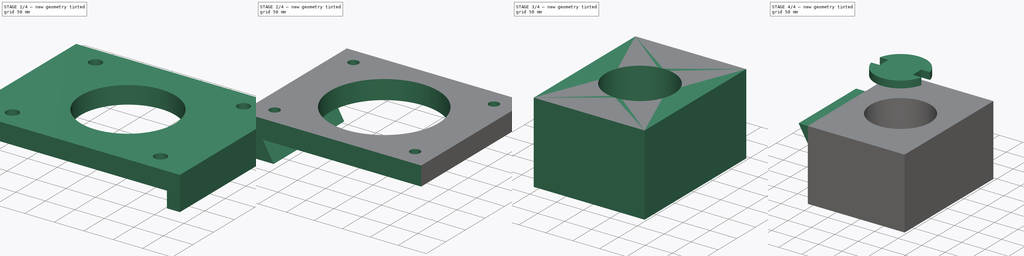
[diagram: build sequence overview — one tinted view per stage of 4, left to right]
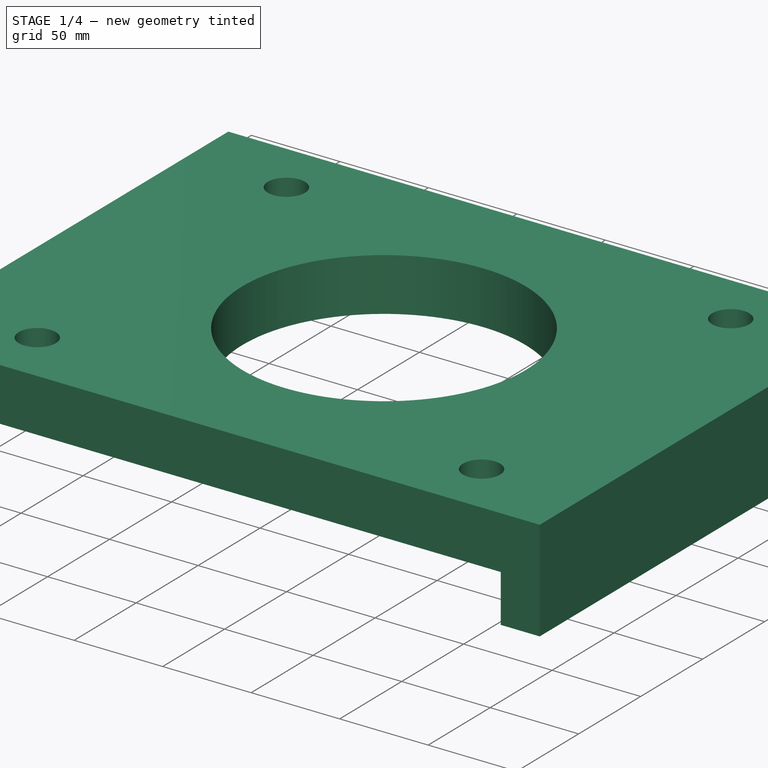
[diagram: stage 1 of 4 — iso view after this stage's code; geometry added in this stage tinted green]
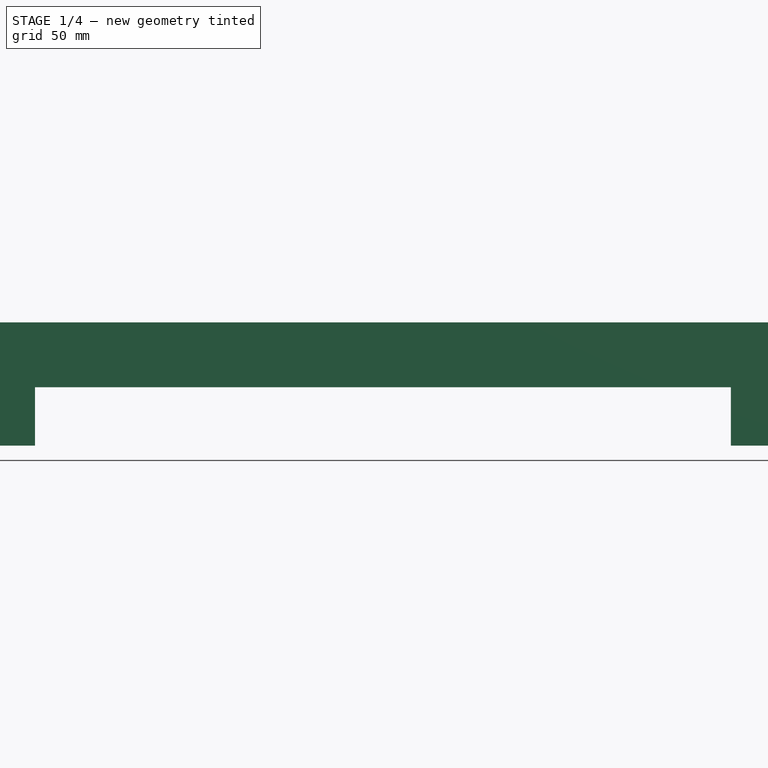
[diagram: stage 1 of 4 — front view after this stage's code; geometry added in this stage tinted green]
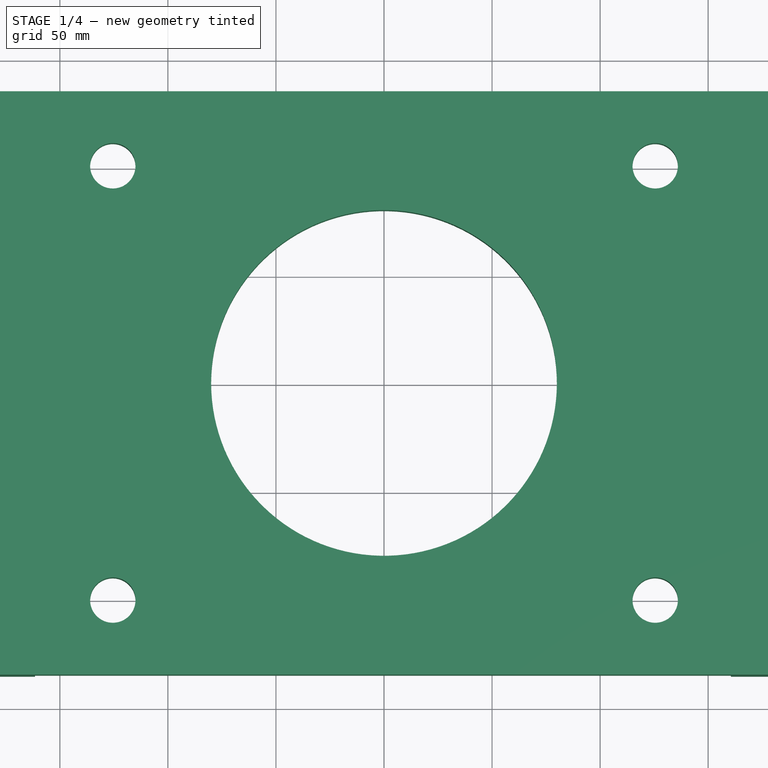
[diagram: stage 1 of 4 — top view after this stage's code; geometry added in this stage tinted green]
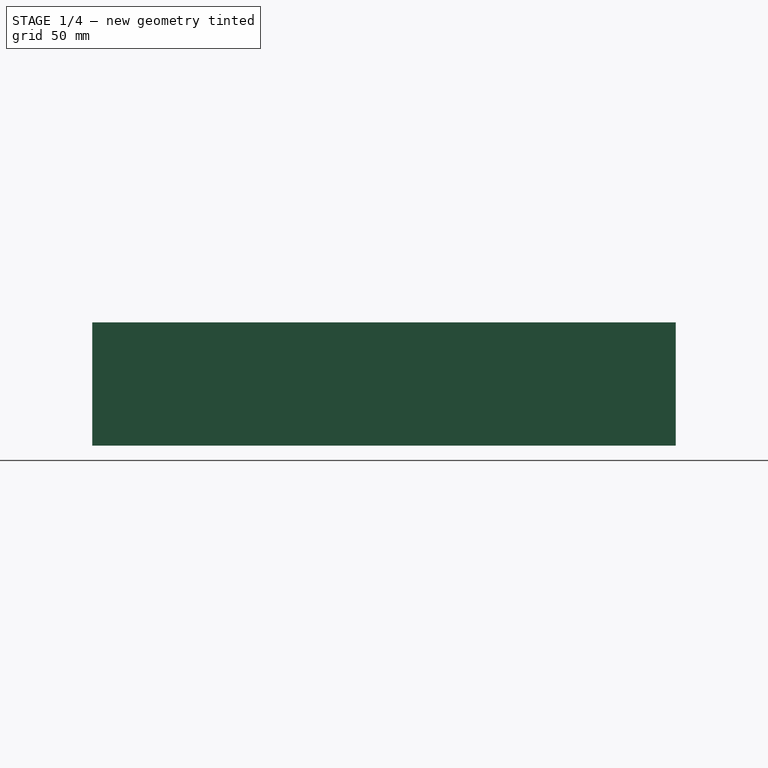
[diagram: stage 1 of 4 — right view after this stage's code; geometry added in this stage tinted green]
FCSTD DOCUMENT  (FreeCAD 0.21R33771 (Git))
Label: slotting_head_adaptation_assembly
License: All rights reserved
LicenseURL: https://en.wikipedia.org/wiki/All_rights_reserved
objects: Sketcher::SketchObject×8, PartDesign::Pad×7, PartDesign::Body×4, App::Part×4, PartDesign::ShapeBinder×3, PartDesign::Plane×2, PartDesign::Mirrored×1, PartDesign::Hole×1
note: 34 computed .brp shape members not serialized (recipe doc carries the construction recipe); baked Part::Feature solids carry a one-line shape summary decoded from their .brp

FEATURE [Sketcher::SketchObject] Sketch001
  FullyConstrained = true
  MapMode = 5
  Support = -> [XY_Plane002]
  sketch-geometry (13):
    g0: Circle CenterX=0 CenterY=0 CenterZ=0 NormalX=0 NormalY=0 NormalZ=1 AngleXU=0 Radius=80
    g1: LineSegment StartX=-182.5 StartY=135 StartZ=0 EndX=-182.5 EndY=-135 EndZ=0
    g2: LineSegment StartX=-182.5 StartY=-135 StartZ=0 EndX=182.5 EndY=-135 EndZ=0
    g3: LineSegment StartX=182.5 StartY=-135 StartZ=0 EndX=182.5 EndY=135 EndZ=0
    g4: LineSegment StartX=182.5 StartY=135 StartZ=0 EndX=-182.5 EndY=135 EndZ=0
    g5: Circle CenterX=-125.5 CenterY=-100.5 CenterZ=0 NormalX=0 NormalY=0 NormalZ=1 AngleXU=0 Radius=10.5
    g6: Circle CenterX=125.5 CenterY=100.5 CenterZ=0 NormalX=0 NormalY=0 NormalZ=1 AngleXU=0 Radius=10.5
    g7: Circle CenterX=125.5 CenterY=-100.5 CenterZ=0 NormalX=0 NormalY=0 NormalZ=1 AngleXU=0 Radius=10.5
    g8: Circle CenterX=-125.5 CenterY=100.5 CenterZ=0 NormalX=0 NormalY=0 NormalZ=1 AngleXU=0 Radius=10.5
    g9: LineSegment StartX=-136 StartY=111 StartZ=0 EndX=-136 EndY=-111 EndZ=0
    g10: LineSegment StartX=-136 StartY=-111 StartZ=0 EndX=136 EndY=-111 EndZ=0
    g11: LineSegment StartX=136 StartY=-111 StartZ=0 EndX=136 EndY=111 EndZ=0
    g12: LineSegment StartX=136 StartY=111 StartZ=0 EndX=-136 EndY=111 EndZ=0
  constraints (33):
    c: Diameter(g0) = 160
    c: Coincident(g1,g2)
    c: Coincident(g2,g3)
    c: Coincident(g3,g4)
    c: Coincident(g4,g1)
    c: Vertical(g1)
    c: Vertical(g3)
    c: Horizontal(g2)
    c: Horizontal(g4)
    c: Distance(g1,g3) = 365
    c: Distance(g2,g4) = 270
    c: Symmetric(g1,g2,g0)
    c: Coincident(g0,g-1)
    c: Radius(g5) = 10.5
    c: Coincident(g9,g10)
    c: Coincident(g10,g11)
    c: Coincident(g11,g12)
    c: Coincident(g12,g9)
    c: Vertical(g9)
    c: Vertical(g11)
    c: Horizontal(g10)
    c: Horizontal(g12)
    c: Distance(g9,g11) = 272
    c: Distance(g10,g12) = 222
    c: Symmetric(g9,g10,g0)
    c: Tangent(g8,g12)
    c: Tangent(g8,g9)
    c: Diameter(g8) = 21
    c: Equal(g8,g6)
    c: Equal(g6,g7)
    c: Symmetric(g7,g8,g0)
    c: Symmetric(g6,g5,g0)
    c: Symmetric(g6,g8,g-2)
FEATURE [PartDesign::Pad] Pad
  Direction = (0,0,1)
  Length = 30
  Length2 = 10
  Profile = -> Sketch001
  ReferenceAxis = -> Sketch001 [N_Axis]
  Refine = true
  Type = 0
FEATURE [Sketcher::SketchObject] Sketch
  ExternalGeometry = -> [Pad]
  FullyConstrained = true
  MapMode = 5
  Placement = pos=(0,0,0) rot=(1,0,0;3.14159rad)
  Support = -> [Pad]
  sketch-geometry (8):
    g0: LineSegment StartX=160.5 StartY=135 StartZ=0 EndX=160.5 EndY=-135 EndZ=0
    g1: LineSegment StartX=160.5 StartY=-135 StartZ=0 EndX=182.5 EndY=-135 EndZ=0
    g2: LineSegment StartX=182.5 StartY=-135 StartZ=0 EndX=182.5 EndY=135 EndZ=0
    g3: LineSegment StartX=182.5 StartY=135 StartZ=0 EndX=160.5 EndY=135 EndZ=0
    g4: LineSegment StartX=-182.5 StartY=135 StartZ=0 EndX=-182.5 EndY=-135 EndZ=0
    g5: LineSegment StartX=-182.5 StartY=-135 StartZ=0 EndX=-161.5 EndY=-135 EndZ=0
    g6: LineSegment StartX=-161.5 StartY=-135 StartZ=0 EndX=-161.5 EndY=135 EndZ=0
    g7: LineSegment StartX=-161.5 StartY=135 StartZ=0 EndX=-182.5 EndY=135 EndZ=0
  constraints (22):
    c: Coincident(g0,g1)
    c: Coincident(g1,g2)
    c: Coincident(g2,g3)
    c: Coincident(g3,g0)
    c: Vertical(g0)
    c: Vertical(g2)
    c: Horizontal(g1)
    c: Horizontal(g3)
    c: Distance(g0,g2) = 22
    c: PointOnObject(g0,g-4)
    c: Coincident(g1,g-6)
    c: Coincident(g4,g5)
    c: Coincident(g5,g6)
    c: Coincident(g6,g7)
    c: Coincident(g7,g4)
    c: Vertical(g4)
    c: Vertical(g6)
    c: Horizontal(g5)
    c: Horizontal(g7)
    c: Coincident(g4,g-5)
    c: PointOnObject(g5,g-6)
    c: Distance(g7,g7) = 21
FEATURE [PartDesign::Pad] Pad001
  BaseFeature = -> Pad
  Direction = (0,0,-1)
  Length = 27
  Length2 = 10
  Profile = -> Sketch
  ReferenceAxis = -> Sketch [N_Axis]
  Refine = true
  Type = 0
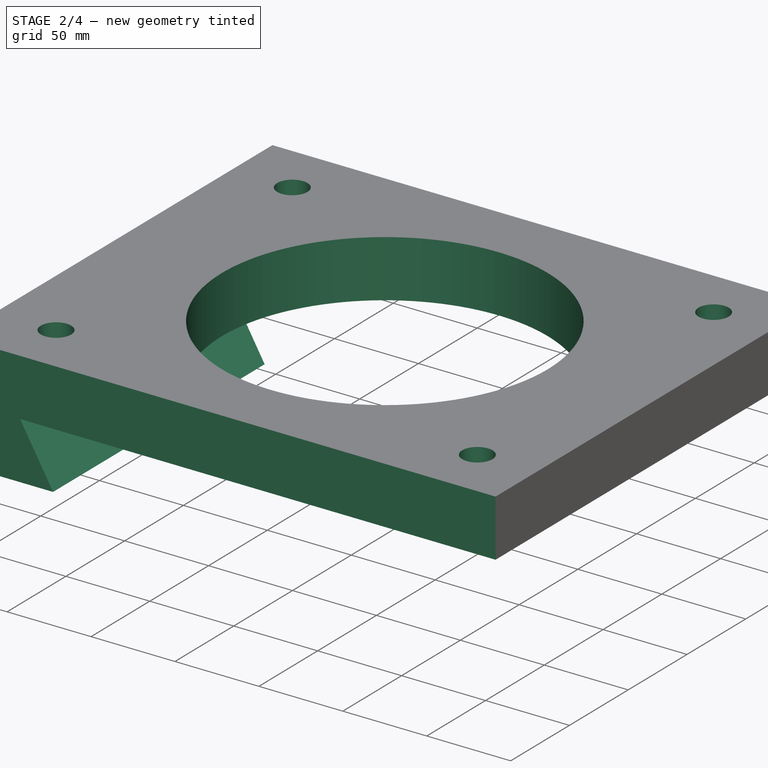
[diagram: stage 2 of 4 — iso view after this stage's code; geometry added in this stage tinted green]
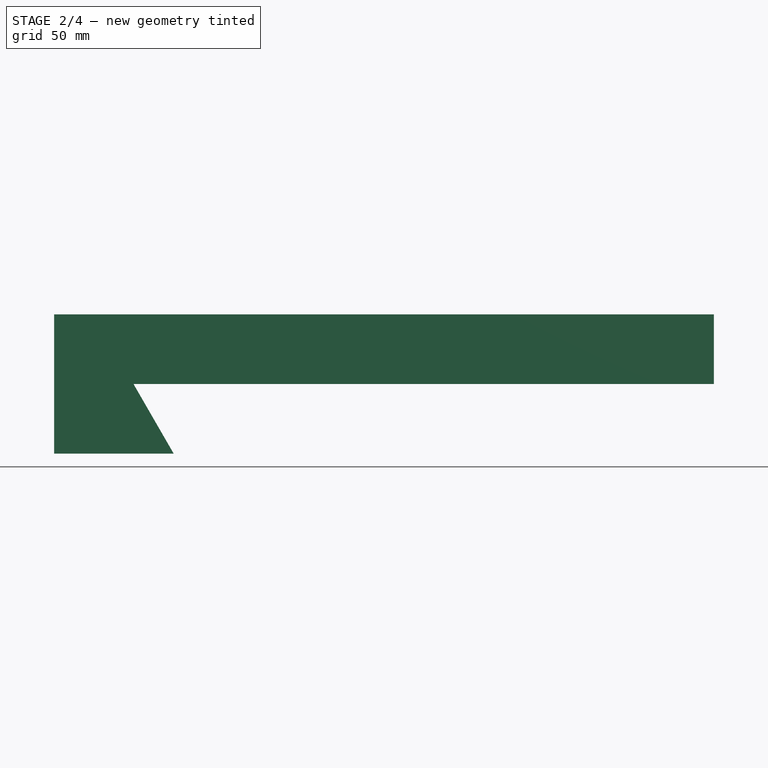
[diagram: stage 2 of 4 — front view after this stage's code; geometry added in this stage tinted green]
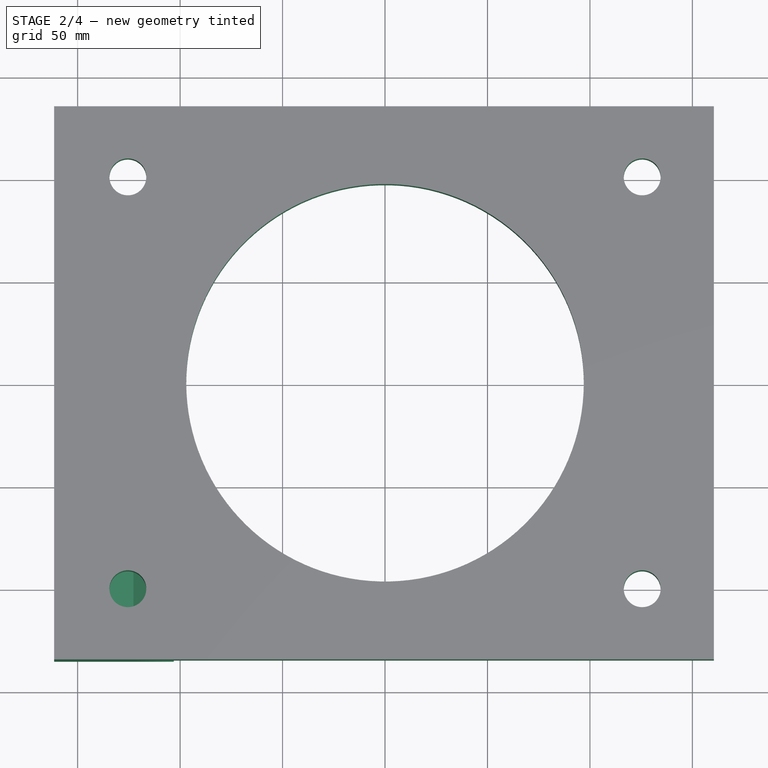
[diagram: stage 2 of 4 — top view after this stage's code; geometry added in this stage tinted green]
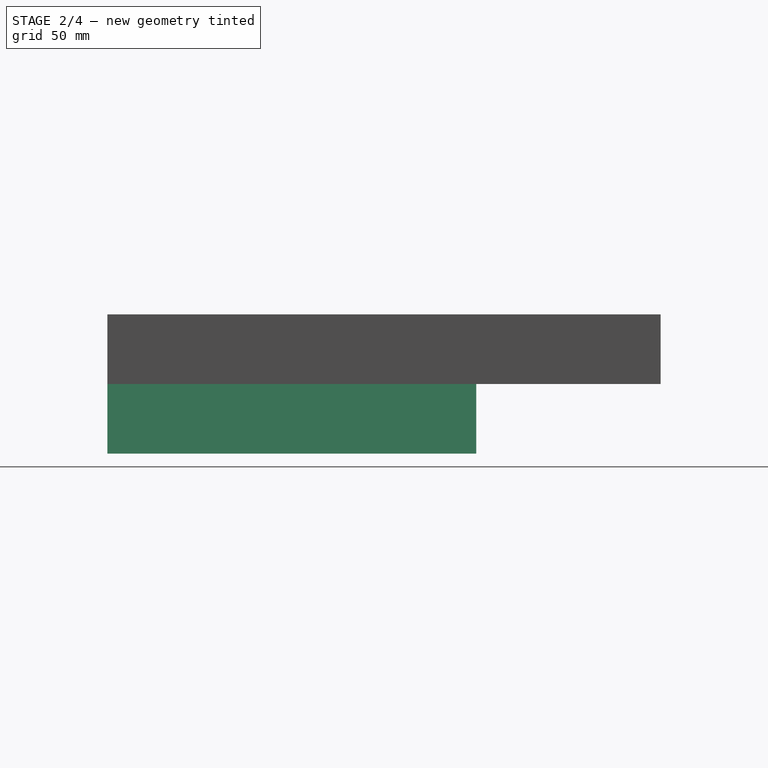
[diagram: stage 2 of 4 — right view after this stage's code; geometry added in this stage tinted green]
FEATURE [PartDesign::Body] Body001  label="Zawartość"
  Group = -> [DatumPlane,Sketch002,Pad002]
  Origin = -> Origin004
  Tip = -> Pad002
FEATURE [App::Part] Part001  label="SlottingHeadShaftCouplinggDisc"
  Group = -> [Body001]
  Origin = -> Origin003
FEATURE [PartDesign::ShapeBinder] ShapeBinder
  Support = -> [Pad001]
  TraceSupport = false
FEATURE [Sketcher::SketchObject] Sketch003
  ExternalGeometry = -> [ShapeBinder]
  FullyConstrained = true
  MapMode = 5
  Placement = pos=(0,0,0) rot=(1,0,0;3.14159rad)
  Support = -> [ShapeBinder]
  sketch-geometry (9):
    g0: Circle CenterX=0 CenterY=0 CenterZ=0 NormalX=0 NormalY=0 NormalZ=1 AngleXU=0 Radius=97
    g1: Circle CenterX=-125.5 CenterY=100.5 CenterZ=0 NormalX=0 NormalY=0 NormalZ=1 AngleXU=0 Radius=9
    g2: Circle CenterX=125.5 CenterY=100.5 CenterZ=0 NormalX=0 NormalY=0 NormalZ=1 AngleXU=0 Radius=9
    g3: Circle CenterX=-125.5 CenterY=-100.5 CenterZ=0 NormalX=0 NormalY=0 NormalZ=1 AngleXU=0 Radius=9
    g4: Circle CenterX=125.5 CenterY=-100.5 CenterZ=0 NormalX=0 NormalY=0 NormalZ=1 AngleXU=0 Radius=9
    g5: LineSegment StartX=-161.5 StartY=135 StartZ=0 EndX=160.5 EndY=135 EndZ=0
    g6: LineSegment StartX=160.5 StartY=135 StartZ=0 EndX=160.5 EndY=-135 EndZ=0
    g7: LineSegment StartX=160.5 StartY=-135 StartZ=0 EndX=-161.5 EndY=-135 EndZ=0
    g8: LineSegment StartX=-161.5 StartY=-135 StartZ=0 EndX=-161.5 EndY=135 EndZ=0
  constraints (21):
    c: Coincident(g0,g-7)
    c: Diameter(g0) = 194
    c: Coincident(g1,g-8)
    c: Coincident(g2,g-9)
    c: Coincident(g3,g-10)
    c: Coincident(g4,g-11)
    c: Diameter(g1) = 18
    c: Diameter(g2) = 18
    c: Diameter(g4) = 18
    c: Diameter(g3) = 18
    c: Coincident(g5,g6)
    c: Coincident(g6,g7)
    c: Coincident(g7,g8)
    c: Coincident(g8,g5)
    c: Horizontal(g5)
    c: Horizontal(g7)
    c: Vertical(g6)
    c: Vertical(g8)
    c: Coincident(g5,g-4)
    c: Coincident(g6,g-6)
    c: DistanceY(g8,g8) = 270
FEATURE [PartDesign::Pad] Pad003
  Direction = (0,0,-1)
  Length = 34
  Length2 = 10
  Profile = -> Sketch003
  ReferenceAxis = -> Sketch003 [N_Axis]
  Type = 0
FEATURE [Sketcher::SketchObject] Sketch004
  ExternalGeometry = -> [Pad003]
  FullyConstrained = true
  MapMode = 5
  Placement = pos=(0,-135,0) rot=(1,0,0;1.5708rad)
  Support = -> [Pad003]
  sketch-geometry (5):
    g0: LineSegment StartX=-161.5 StartY=-34 StartZ=0 EndX=-122.75 EndY=-34 EndZ=0
    g1: LineSegment StartX=-122.75 StartY=-34 StartZ=0 EndX=-103.12 EndY=-68 EndZ=0
    g2: LineSegment StartX=-103.12 StartY=-68 StartZ=0 EndX=-161.5 EndY=-68 EndZ=0
    g3: LineSegment StartX=-161.5 StartY=-68 StartZ=0 EndX=-161.5 EndY=-34 EndZ=0
    g4: GeomPoint X=0 Y=-34 Z=0
  constraints (15):
    c: Coincident(g-3,g0)
    c: PointOnObject(g0,g-3)
    c: Coincident(g0,g1)
    c: Coincident(g1,g2)
    c: Horizontal(g2)
    c: Coincident(g2,g3)
    c: Coincident(g3,g0)
    c: Vertical(g3)
    c: Angle(g1,g-3) = 1.0472
    c: PointOnObject(g4,g-2)
    c: PointOnObject(g4,g-3)
    c: DistanceX(g0,g4) = 122.75
    c: DistanceY(g3,g3) = 34
    c: DistanceX(g0,g4) = 161.5
    c: DistanceX(g4,g-3) = 160.5
FEATURE [PartDesign::Pad] Pad004
  BaseFeature = -> Pad003
  Direction = (0,-1,2e-16)
  Length = 180
  Length2 = 10
  Profile = -> Sketch004
  ReferenceAxis = -> Sketch004 [N_Axis]
  Reversed = true
  Type = 0
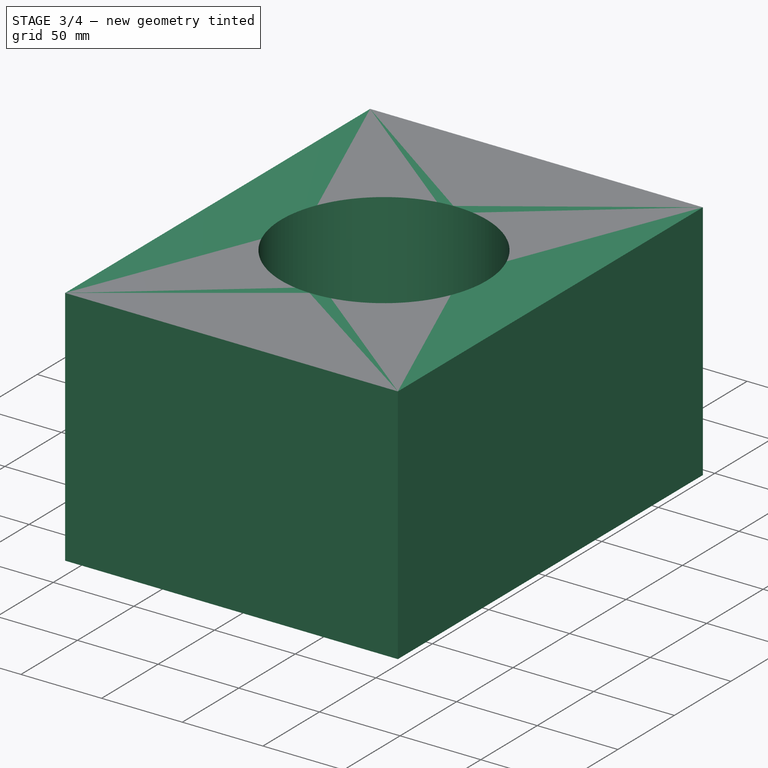
[diagram: stage 3 of 4 — iso view after this stage's code; geometry added in this stage tinted green]
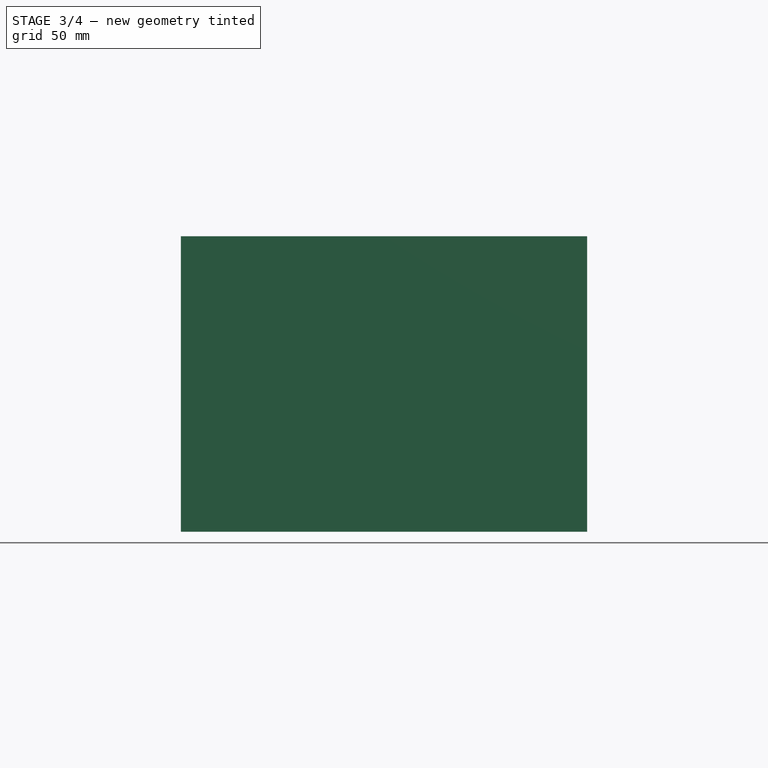
[diagram: stage 3 of 4 — front view after this stage's code; geometry added in this stage tinted green]
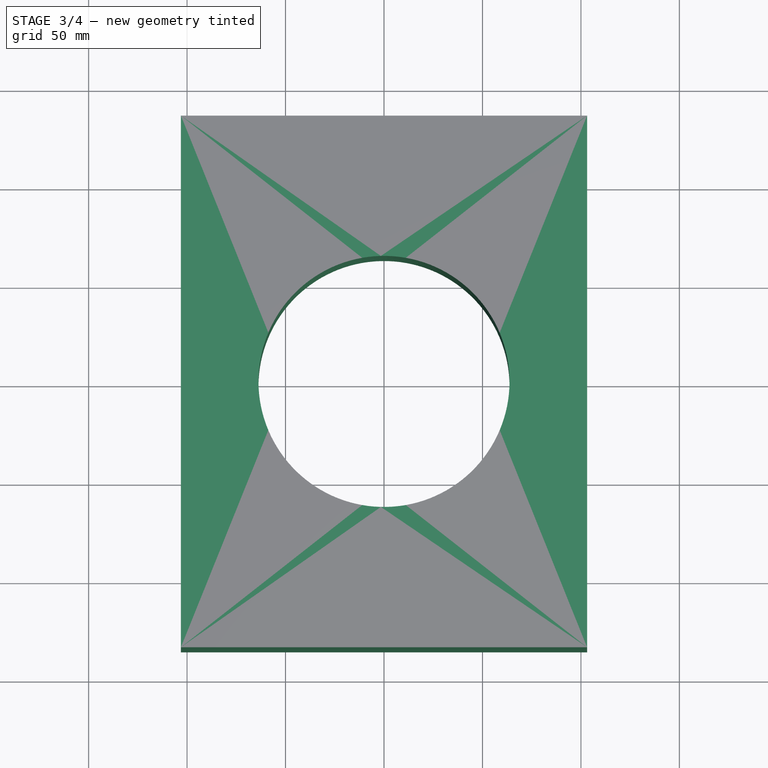
[diagram: stage 3 of 4 — top view after this stage's code; geometry added in this stage tinted green]
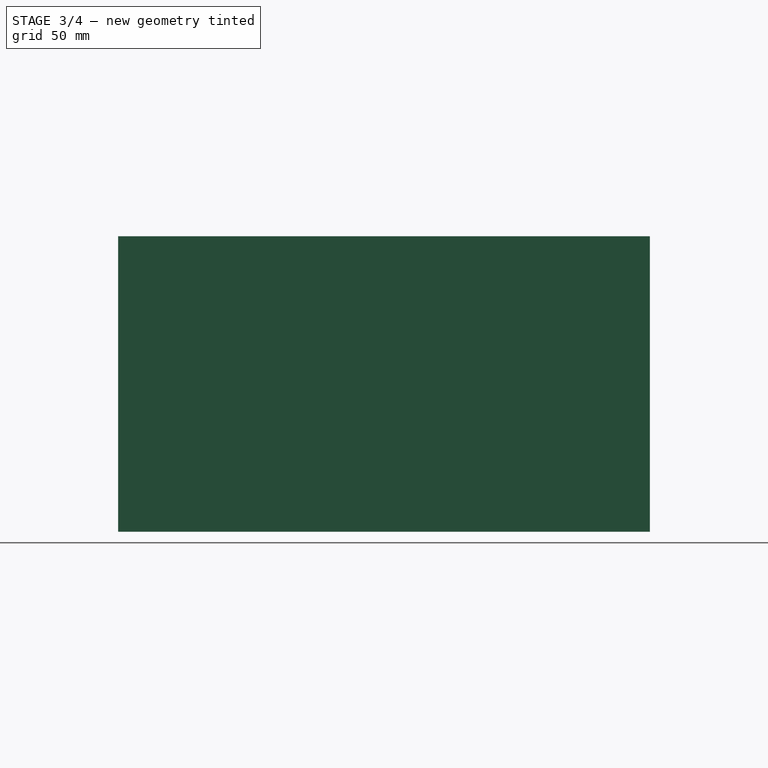
[diagram: stage 3 of 4 — right view after this stage's code; geometry added in this stage tinted green]
FEATURE [PartDesign::Mirrored] Mirrored
  BaseFeature = -> Pad004
  MirrorPlane = -> Sketch004 [V_Axis]
  Originals = -> [Pad004]
FEATURE [Sketcher::SketchObject] Sketch005
  ExternalGeometry = -> [Mirrored]
  FullyConstrained = false
  MapMode = 5
  Placement = pos=(0,0,-34) rot=(1,0,0;3.14159rad)
  Support = -> [Mirrored]
  sketch-geometry (15):
    g0: LineSegment StartX=-112.935 StartY=135 StartZ=0 EndX=-112.935 EndY=-135 EndZ=0
    g1: LineSegment StartX=112.935 StartY=135 StartZ=0 EndX=112.935 EndY=-135 EndZ=0
    g2: GeomPoint X=-112.935 Y=0 Z=0
    g3: GeomPoint X=-112.935 Y=60 Z=0
    g4: GeomPoint X=112.935 Y=60 Z=0
    g5: GeomPoint X=112.935 Y=-60 Z=0
    g6: GeomPoint X=-112.935 Y=-60 Z=0
    g7: GeomPoint X=-112.935 Y=60 Z=0
    g8: GeomPoint X=-112.935 Y=-60 Z=0
    g9: GeomPoint X=112.935 Y=60 Z=0
    g10: GeomPoint X=112.935 Y=-60 Z=0
    g11: Circle CenterX=-112.935 CenterY=60 CenterZ=0 NormalX=0 NormalY=0 NormalZ=1 AngleXU=0 Radius=9
    g12: Circle CenterX=-112.935 CenterY=-60 CenterZ=0 NormalX=0 NormalY=0 NormalZ=1 AngleXU=0 Radius=9
    g13: Circle CenterX=112.935 CenterY=60 CenterZ=0 NormalX=0 NormalY=0 NormalZ=1 AngleXU=0 Radius=9
    g14: Circle CenterX=112.935 CenterY=-60 CenterZ=0 NormalX=0 NormalY=0 NormalZ=1 AngleXU=0 Radius=9
  constraints (23):
    c: Vertical(g0)
    c: Vertical(g1)
    c: DistanceY(g0,g0) = 270
    c: PointOnObject(g2,g0)
    c: PointOnObject(g2,g-1)
    c: DistanceY(g2,g3) = 60
    c: PointOnObject(g4,g1)
    c: Symmetric(g6,g3,g-1)
    c: Symmetric(g6,g4,g-1)
    c: Symmetric(g3,g5,g-1)
    c: Coincident(g7,g3)
    c: Coincident(g8,g6)
    c: Coincident(g9,g4)
    c: Coincident(g10,g5)
    c: Coincident(g11,g3)
    c: Coincident(g12,g6)
    c: Coincident(g13,g4)
    c: Coincident(g14,g5)
    c: Diameter(g13) = 18
    c: Diameter(g12) = 18
    c: Diameter(g11) = 18
    c: Diameter(g11) = 18
    c: Diameter(g14) = 18
FEATURE [PartDesign::Hole] Hole
  BaseFeature = -> Mirrored
  CustomThreadClearance = 0
  Depth = 34
  DepthType = 0
  Diameter = 18
  DrillForDepth = true
  DrillPoint = 0
  DrillPointAngle = 118
  HoleCutCountersinkAngle = 90
  HoleCutCustomValues = false
  HoleCutDepth = 0
  HoleCutDiameter = 6.1
  HoleCutType = 0
  ModelThread = false
  Profile = -> Sketch005
  Tapered = false
  TaperedAngle = 90
  ThreadClass = 0
  ThreadDepth = 34
  ThreadDepthType = 0
  ThreadDirection = 0
  ThreadFit = 0
  ThreadSize = 0
  ThreadType = 0
  Threaded = false
  UseCustomThreadClearance = false
FEATURE [PartDesign::Body] Body002  label="SlottingHeadAdapterPlate001"
  Group = -> [ShapeBinder,Sketch003,Pad003,Sketch004,Pad004,Mirrored,Sketch005,Hole]
  Origin = -> Origin006
  Tip = -> Hole
FEATURE [App::Part] Part002  label="SlottingHeadAdapterPlate"
  Group = -> [Body002]
  Origin = -> Origin005
FEATURE [PartDesign::ShapeBinder] ShapeBinder001
  Support = -> [Hole]
  TraceSupport = false
FEATURE [Sketcher::SketchObject] Sketch006
  AttachmentOffset = pos=(0,0,-34) rot=(0,0,1;0rad)
  ExternalGeometry = -> [ShapeBinder001]
  FullyConstrained = true
  MapMode = 5
  Placement = pos=(0,0,-34) rot=(0,0,1;0rad)
  Support = -> [XY_Plane008]
  sketch-geometry (5):
    g0: LineSegment StartX=-103.12 StartY=-135 StartZ=0 EndX=103.12 EndY=-135 EndZ=0
    g1: LineSegment StartX=103.12 StartY=-135 StartZ=0 EndX=103.12 EndY=135 EndZ=0
    g2: LineSegment StartX=103.12 StartY=135 StartZ=0 EndX=-103.12 EndY=135 EndZ=0
    g3: LineSegment StartX=-103.12 StartY=135 StartZ=0 EndX=-103.12 EndY=-135 EndZ=0
    g4: Circle CenterX=0 CenterY=0 CenterZ=0 NormalX=0 NormalY=0 NormalZ=1 AngleXU=0 Radius=63.75
  constraints (12):
    c: Coincident(g0,g1)
    c: Coincident(g1,g2)
    c: Coincident(g2,g3)
    c: Coincident(g3,g0)
    c: Horizontal(g2)
    c: Vertical(g1)
    c: Vertical(g3)
    c: Coincident(g0,g-4)
    c: PointOnObject(g1,g-3)
    c: Coincident(g0,g-5)
    c: Coincident(g4,g-1)
    c: Diameter(g4) = 127.5
FEATURE [PartDesign::Pad] Pad005
  Direction = (0,0,1)
  Length = 150
  Length2 = 10
  Profile = -> Sketch006
  ReferenceAxis = -> Sketch006 [N_Axis]
  Reversed = true
  Type = 0
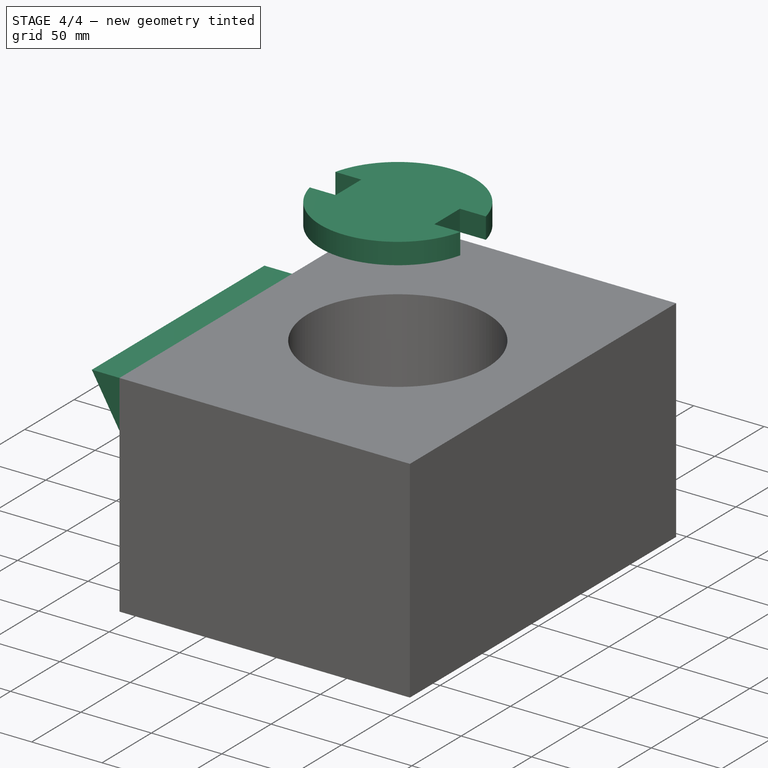
[diagram: stage 4 of 4 — iso view after this stage's code; geometry added in this stage tinted green]
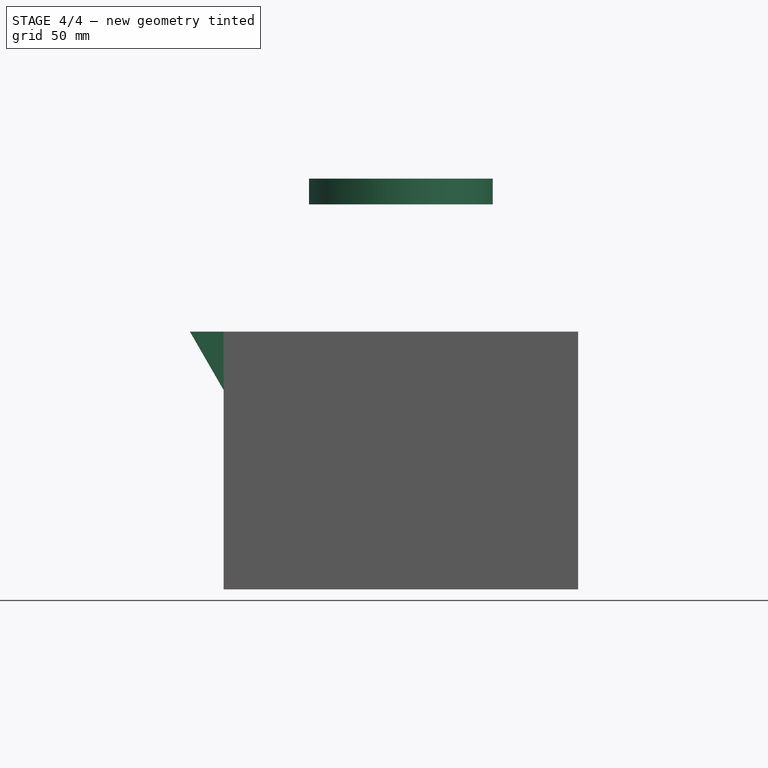
[diagram: stage 4 of 4 — front view after this stage's code; geometry added in this stage tinted green]
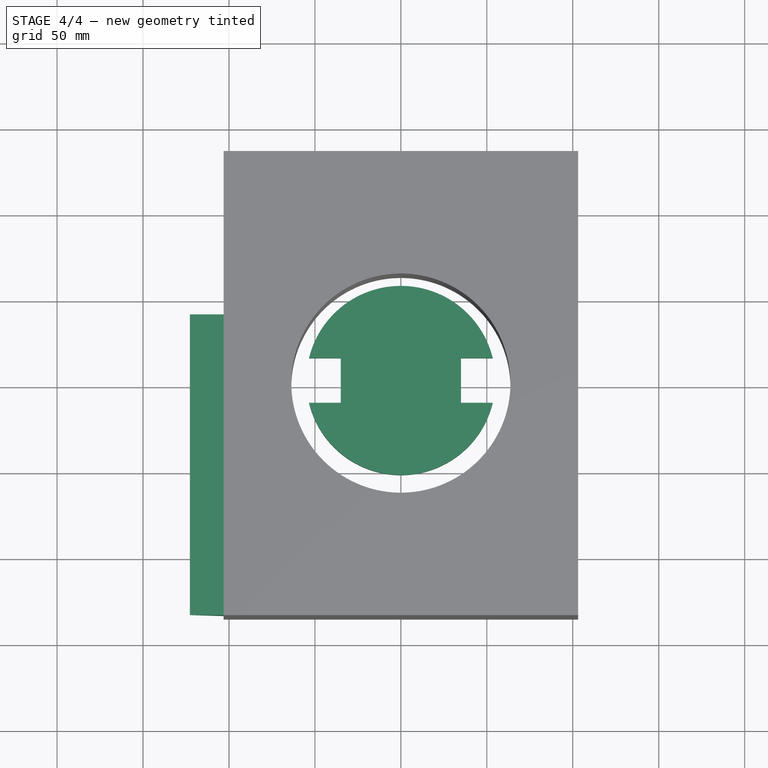
[diagram: stage 4 of 4 — top view after this stage's code; geometry added in this stage tinted green]
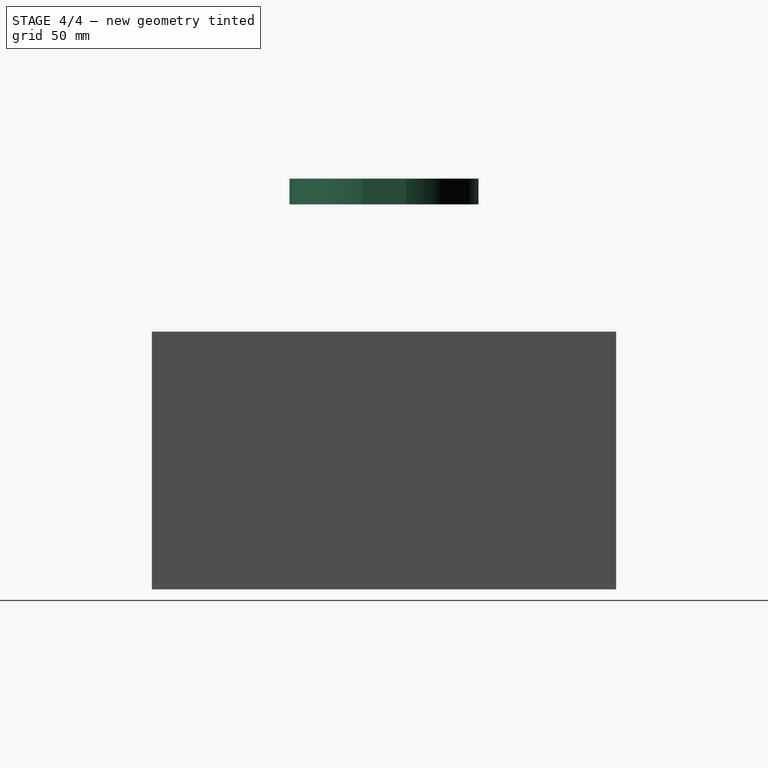
[diagram: stage 4 of 4 — right view after this stage's code; geometry added in this stage tinted green]
FEATURE [PartDesign::Body] Body
  Group = -> [Sketch001,Pad,Sketch,Pad001]
  Origin = -> Origin002
  Tip = -> Pad001
FEATURE [App::Part] Part  label="SlottingHeadMountingPlate"
  Group = -> [Body]
  Origin = -> Origin001
FEATURE [PartDesign::Plane] DatumPlane
  AttachmentOffset = pos=(0,0,-40) rot=(0,0,1;0rad)
  Length = 60
  MapMode = 5
  Placement = pos=(0,0,40) rot=(1,0,0;3.14159rad)
  ResizeMode = 0
  Support = -> [Pad001]
  Width = 60
FEATURE [Sketcher::SketchObject] Sketch002
  FullyConstrained = true
  MapMode = 5
  Placement = pos=(0,0,40) rot=(1,0,0;3.14159rad)
  Support = -> [DatumPlane]
  sketch-geometry (8):
    g0: LineSegment StartX=-35 StartY=13 StartZ=0 EndX=-35 EndY=-13 EndZ=0
    g1: LineSegment StartX=35 StartY=13 StartZ=0 EndX=35 EndY=-13 EndZ=0
    g2: LineSegment StartX=35 StartY=13 StartZ=0 EndX=53.4416 EndY=13 EndZ=0
    g3: LineSegment StartX=35 StartY=-13 StartZ=0 EndX=53.4416 EndY=-13 EndZ=0
    g4: LineSegment StartX=-35 StartY=-13 StartZ=0 EndX=-53.4416 EndY=-13 EndZ=0
    g5: LineSegment StartX=-35 StartY=13 StartZ=0 EndX=-53.4416 EndY=13 EndZ=0
    g6: ArcOfCircle CenterX=-2.1e-15 CenterY=-9.3e-15 CenterZ=0 NormalX=0 NormalY=0 NormalZ=1 AngleXU=0 Radius=55 StartAngle=3.38021 EndAngle=6.04456
    g7: ArcOfCircle CenterX=-2.1e-15 CenterY=-9.3e-15 CenterZ=0 NormalX=0 NormalY=0 NormalZ=1 AngleXU=0 Radius=55 StartAngle=0.238622 EndAngle=2.90297
  constraints (21):
    c: DistanceY(g1,g1) = 26
    c: Symmetric(g0,g0,g-1)
    c: DistanceX(g0,g1) = 70
    c: Horizontal(g2)
    c: Horizontal(g3)
    c: Horizontal(g4)
    c: Coincident(g4,g0)
    c: Coincident(g5,g0)
    c: Coincident(g3,g1)
    c: Coincident(g2,g1)
    c: Coincident(g6,g4)
    c: Coincident(g6,g3)
    c: Equal(g2,g3)
    c: Coincident(g7,g6)
    c: Coincident(g7,g5)
    c: Coincident(g7,g2)
    c: Symmetric(g1,g1,g-1)
    c: Diameter(g7) = 110
    c: Symmetric(g5,g3,g-1)
    c: Diameter(g6) = 110
    c: Symmetric(g1,g0,g-2)
FEATURE [PartDesign::Pad] Pad002
  Direction = (0,0,-1)
  Length = 15
  Length2 = 10
  Placement = pos=(0,0,40) rot=(1,0,0;3.14159rad)
  Profile = -> Sketch002
  ReferenceAxis = -> Sketch002 [N_Axis]
  Reversed = true
  Type = 0
FEATURE [PartDesign::ShapeBinder] ShapeBinder002
  Support = -> [Hole]
  TraceSupport = false
FEATURE [Sketcher::SketchObject] Sketch007
  AttachmentOffset = pos=(0,0,135) rot=(0,0,1;0rad)
  ExternalGeometry = -> [ShapeBinder002]
  FullyConstrained = true
  MapMode = 5
  Placement = pos=(0,-135,3e-14) rot=(1,0,0;1.5708rad)
  Support = -> [XZ_Plane008]
  sketch-geometry (4):
    g0: LineSegment StartX=-103.12 StartY=-68 StartZ=0 EndX=-122.75 EndY=-34 EndZ=0
    g1: LineSegment StartX=-122.75 StartY=-34 StartZ=0 EndX=-102.12 EndY=-34 EndZ=0
    g2: LineSegment StartX=-102.12 StartY=-34 StartZ=0 EndX=-102.12 EndY=-68 EndZ=0
    g3: LineSegment StartX=-102.12 StartY=-68 StartZ=0 EndX=-103.12 EndY=-68 EndZ=0
  constraints (11):
    c: Coincident(g-3,g0)
    c: Coincident(g0,g1)
    c: Horizontal(g1)
    c: Coincident(g1,g2)
    c: Vertical(g2)
    c: Coincident(g2,g3)
    c: Coincident(g3,g0)
    c: Horizontal(g3)
    c: Angle(g0,g1) = 1.0472
    c: DistanceY(g0,g0) = 34
    c: DistanceX(g3,g3) = 1
FEATURE [PartDesign::Pad] Pad006
  BaseFeature = -> Pad005
  Direction = (0,-1,0)
  Length = 175
  Length2 = 10
  Profile = -> Sketch007
  ReferenceAxis = -> Sketch007 [N_Axis]
  Reversed = true
  Type = 0
FEATURE [PartDesign::Plane] DatumPlane001
  Length = 60
  MapMode = 4
  Placement = pos=(0,0,0) rot=(0.57735,0.57735,0.57735;2.0944rad)
  ResizeMode = 0
  Support = -> [Pad006]
  Width = 60
FEATURE [PartDesign::Body] Body003  label="Zawartość001"
  Group = -> [ShapeBinder001,Sketch006,Pad005,ShapeBinder002,Sketch007,Pad006,DatumPlane001]
  Origin = -> Origin008
  Tip = -> Pad006
FEATURE [App::Part] Part003  label="TheMillDoveTailMount"
  Group = -> [Body003]
  Origin = -> Origin007
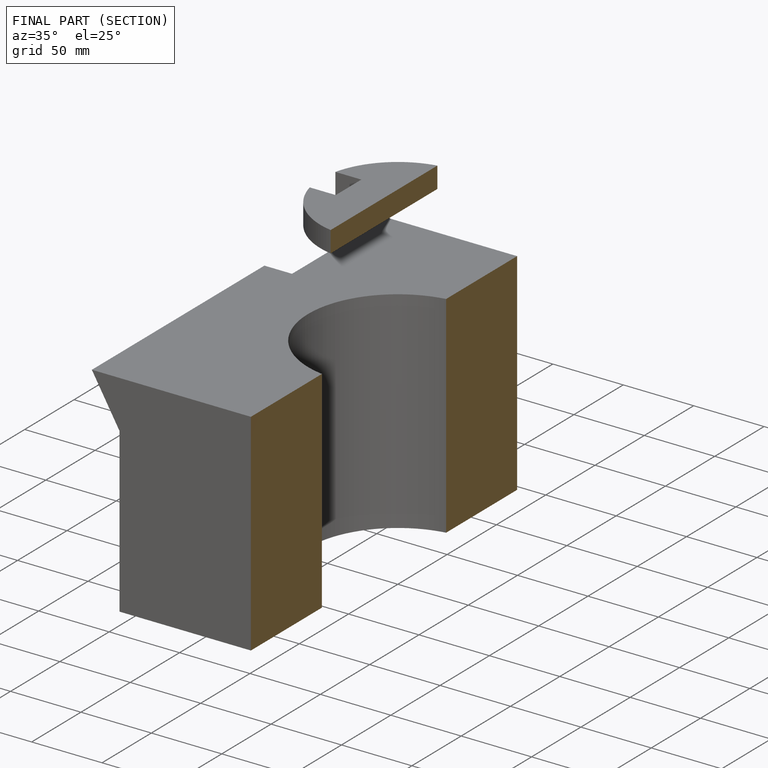
[diagram: finished part — half-section view (interior)]
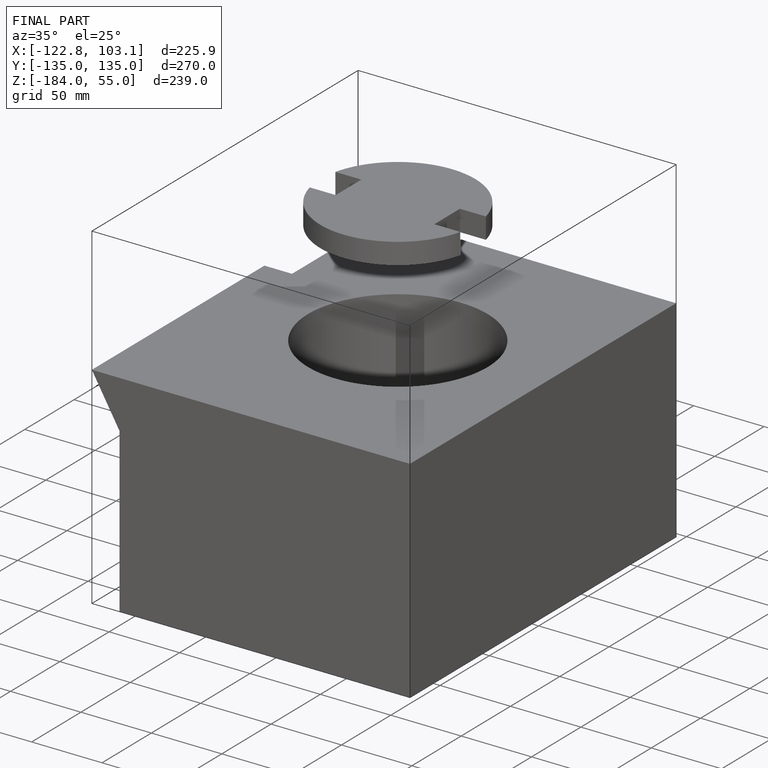
[diagram: finished part — iso view with bounding-box wireframe]
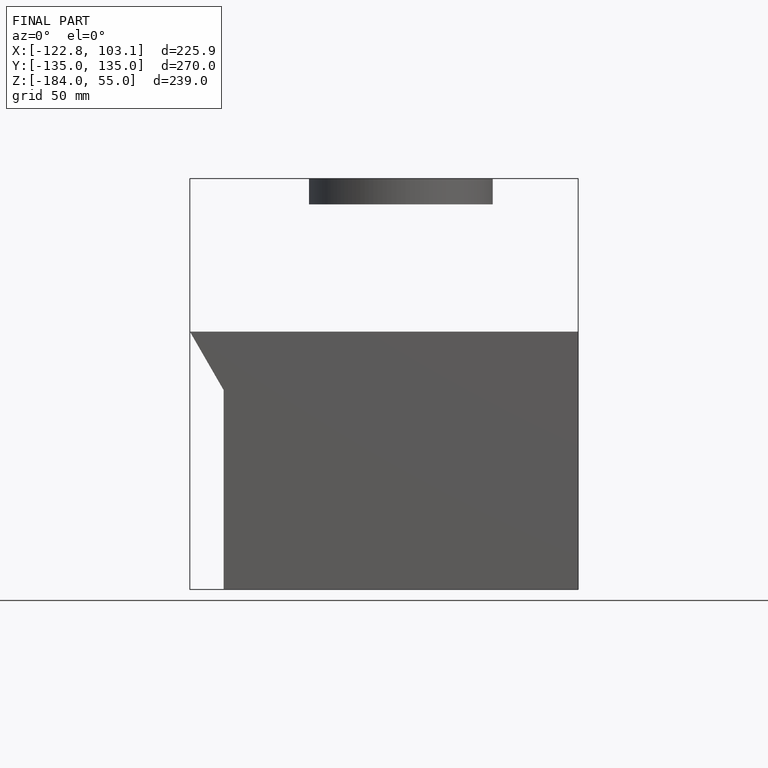
[diagram: finished part — front view with bounding-box wireframe]
